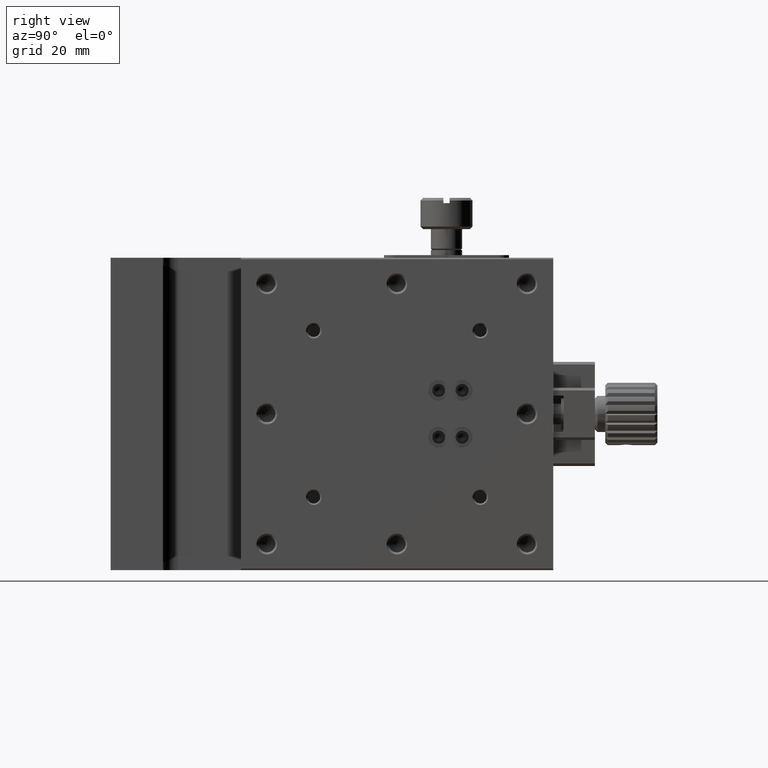
[diagram: clean part render]
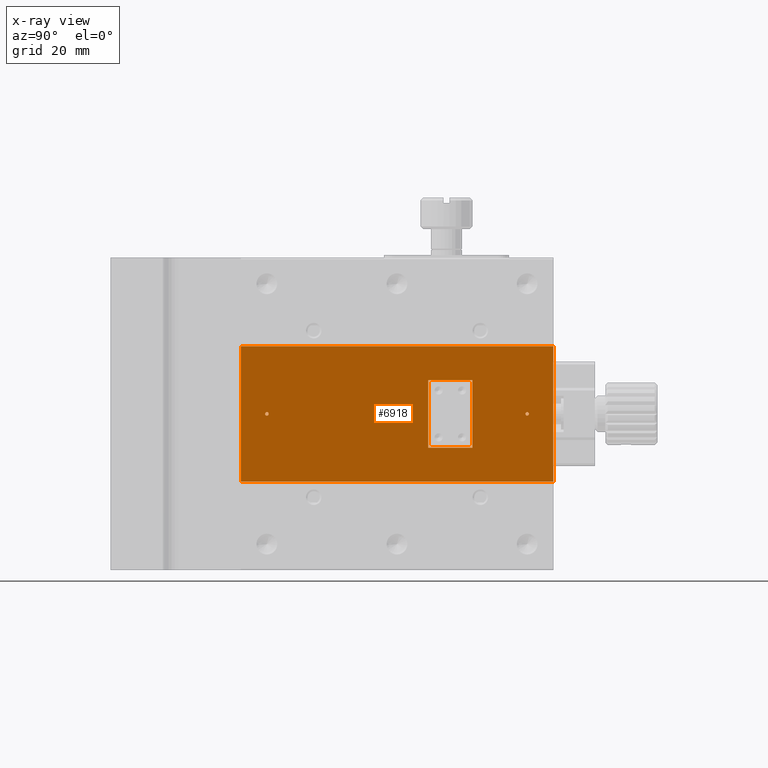
[diagram: x-ray — body ghosted, one internal face saturated and labeled with its STEP entity id]
A machine part, right view, then the same camera in x-ray: the body is ghosted and one INTERNAL B-rep face — a face not visible from any outside direction — is saturated and labeled: STEP entity #6918.
In plain terms, the highlighted planar face has unit normal (1, 0, -0).
Its self-contained STEP definition (entity closure, byte-faithful):
#356 = DIRECTION ( 'NONE',  ( 0.000000000000000000, -1.000000000000000000, 0.000000000000000000 ) ) ;
#392 = EDGE_LOOP ( 'NONE', ( #3092 ) ) ;
#448 = LINE ( 'NONE', #1371, #7311 ) ;
#479 = EDGE_LOOP ( 'NONE', ( #5239 ) ) ;
#523 = DIRECTION ( 'NONE',  ( 0.000000000000000000, -1.000000000000000000, 0.000000000000000000 ) ) ;
#658 = CARTESIAN_POINT ( 'NONE',  ( 30.99999999997134736, 80.00000000000000000, -29.99999999999999289 ) ) ;
#950 = CARTESIAN_POINT ( 'NONE',  ( 31.00000000000000000, 69.50000000000000000, -23.49999999999999289 ) ) ;
#991 = EDGE_CURVE ( 'NONE', #8866, #9744, #6757, .T. ) ;
#1122 = PLANE ( 'NONE',  #7941 ) ;
#1259 = VECTOR ( 'NONE', #2640, 1000.000000000000000 ) ;
#1313 = ORIENTED_EDGE ( 'NONE', *, *, #2258, .F. ) ;
#1371 = CARTESIAN_POINT ( 'NONE',  ( 31.00000000000000000, 61.00000000000000711, -16.99999999999999289 ) ) ;
#1388 = DIRECTION ( 'NONE',  ( -0.000000000000000000, 1.000000000000000000, -0.000000000000000000 ) ) ;
#1482 = EDGE_CURVE ( 'NONE', #3645, #4784, #448, .T. ) ;
#1760 = EDGE_CURVE ( 'NONE', #4632, #4632, #6449, .T. ) ;
#1763 = AXIS2_PLACEMENT_3D ( 'NONE', #2610, #6177, #4502 ) ;
#1929 = DIRECTION ( 'NONE',  ( 0.000000000000000000, 0.000000000000000000, -1.000000000000000000 ) ) ;
#2221 = DIRECTION ( 'NONE',  ( -0.000000000000000000, 1.000000000000000000, -0.000000000000000000 ) ) ;
#2258 = EDGE_CURVE ( 'NONE', #8866, #7304, #7791, .T. ) ;
#2471 = VECTOR ( 'NONE', #356, 1000.000000000000000 ) ;
#2610 = CARTESIAN_POINT ( 'NONE',  ( 30.99999999997134736, 30.00000000000000711, -29.99999999999999289 ) ) ;
#2640 = DIRECTION ( 'NONE',  ( 0.000000000000000000, 0.000000000000000000, -1.000000000000000000 ) ) ;
#2757 = FACE_BOUND ( 'NONE', #392, .T. ) ;
#2774 = LINE ( 'NONE', #6189, #8143 ) ;
#2867 = FACE_BOUND ( 'NONE', #479, .T. ) ;
#2981 = EDGE_CURVE ( 'NONE', #8095, #8095, #6306, .T. ) ;
#3051 = DIRECTION ( 'NONE',  ( 1.334402673828309888E-16, 0.000000000000000000, 1.000000000000000000 ) ) ;
#3092 = ORIENTED_EDGE ( 'NONE', *, *, #2981, .F. ) ;
#3156 = VERTEX_POINT ( 'NONE', #5378 ) ;
#3275 = DIRECTION ( 'NONE',  ( -1.000000000000000000, -0.000000000000000000, -0.000000000000000000 ) ) ;
#3314 = ORIENTED_EDGE ( 'NONE', *, *, #1482, .F. ) ;
#3375 = DIRECTION ( 'NONE',  ( -1.334402673828309888E-16, -0.000000000000000000, -1.000000000000000000 ) ) ;
#3573 = CARTESIAN_POINT ( 'NONE',  ( 31.00000000000000000, 25.00000000000000711, -16.99999999999999289 ) ) ;
#3645 = VERTEX_POINT ( 'NONE', #8265 ) ;
#3796 = LINE ( 'NONE', #9754, #7100 ) ;
#3799 = EDGE_LOOP ( 'NONE', ( #3314, #6053, #4110, #9258 ) ) ;
#3935 = VECTOR ( 'NONE', #3375, 1000.000000000000000 ) ;
#3992 = DIRECTION ( 'NONE',  ( 0.000000000000000000, 0.000000000000000000, 1.000000000000000000 ) ) ;
#4084 = EDGE_CURVE ( 'NONE', #7125, #6648, #8148, .T. ) ;
#4110 = ORIENTED_EDGE ( 'NONE', *, *, #4084, .F. ) ;
#4502 = DIRECTION ( 'NONE',  ( 0.000000000000000000, 0.000000000000000000, 1.000000000000000000 ) ) ;
#4632 = VERTEX_POINT ( 'NONE', #8751 ) ;
#4784 = VERTEX_POINT ( 'NONE', #9546 ) ;
#4791 = CARTESIAN_POINT ( 'NONE',  ( 30.99999999997134736, 80.00000000000000000, -29.66427948234694867 ) ) ;
#4808 = CARTESIAN_POINT ( 'NONE',  ( 30.99999999999999289, 25.00000000000000711, -43.00000000000000000 ) ) ;
#4975 = ORIENTED_EDGE ( 'NONE', *, *, #8659, .F. ) ;
#4977 = EDGE_CURVE ( 'NONE', #7304, #3156, #6003, .T. ) ;
#5239 = ORIENTED_EDGE ( 'NONE', *, *, #1760, .F. ) ;
#5258 = FACE_OUTER_BOUND ( 'NONE', #9528, .T. ) ;
#5378 = CARTESIAN_POINT ( 'NONE',  ( 30.99999999999999289, 25.00000000000000711, -43.00000000000000000 ) ) ;
#5952 = CARTESIAN_POINT ( 'NONE',  ( 31.00000000000000000, 25.00000000000000711, 7.347880794884119933E-15 ) ) ;
#6003 = LINE ( 'NONE', #5952, #8275 ) ;
#6053 = ORIENTED_EDGE ( 'NONE', *, *, #9715, .F. ) ;
#6173 = CARTESIAN_POINT ( 'NONE',  ( 31.00000000000000000, 25.00000000000000711, -16.99999999999999289 ) ) ;
#6177 = DIRECTION ( 'NONE',  ( -1.000000000000000000, -0.000000000000000000, -0.000000000000000000 ) ) ;
#6189 = CARTESIAN_POINT ( 'NONE',  ( 30.99999999999999645, 25.00000000000000711, -23.49999999999999289 ) ) ;
#6228 = CARTESIAN_POINT ( 'NONE',  ( 30.99999999999999289, 85.00000000000000000, -43.00000000000000000 ) ) ;
#6306 = CIRCLE ( 'NONE', #9256, 0.3357205176530431157 ) ;
#6449 = CIRCLE ( 'NONE', #1763, 0.3357205176530431157 ) ;
#6567 = VECTOR ( 'NONE', #1388, 1000.000000000000000 ) ;
#6608 = CARTESIAN_POINT ( 'NONE',  ( 30.99999999999999645, 69.50000000000000000, -36.49999999999999289 ) ) ;
#6648 = VERTEX_POINT ( 'NONE', #6608 ) ;
#6757 = LINE ( 'NONE', #10075, #1259 ) ;
#6860 = CARTESIAN_POINT ( 'NONE',  ( 31.00000000000000000, 25.00000000000000711, -16.99999999999999289 ) ) ;
#6918 = ADVANCED_FACE ( 'NONE', ( #5258, #2867, #2757, #8561 ), #1122, .F. ) ;
#7037 = DIRECTION ( 'NONE',  ( 1.000000000000000000, 0.000000000000000000, -1.334402673828309888E-16 ) ) ;
#7038 = ORIENTED_EDGE ( 'NONE', *, *, #4977, .F. ) ;
#7100 = VECTOR ( 'NONE', #523, 1000.000000000000000 ) ;
#7125 = VERTEX_POINT ( 'NONE', #950 ) ;
#7304 = VERTEX_POINT ( 'NONE', #6860 ) ;
#7311 = VECTOR ( 'NONE', #3051, 1000.000000000000000 ) ;
#7615 = CARTESIAN_POINT ( 'NONE',  ( 31.00000000000000000, 85.00000000000000000, -16.99999999999999289 ) ) ;
#7791 = LINE ( 'NONE', #3573, #2471 ) ;
#7941 = AXIS2_PLACEMENT_3D ( 'NONE', #6173, #7037, #10348 ) ;
#8095 = VERTEX_POINT ( 'NONE', #4791 ) ;
#8143 = VECTOR ( 'NONE', #2221, 1000.000000000000000 ) ;
#8148 = LINE ( 'NONE', #8251, #3935 ) ;
#8171 = EDGE_CURVE ( 'NONE', #4784, #7125, #2774, .T. ) ;
#8251 = CARTESIAN_POINT ( 'NONE',  ( 31.00000000000000000, 69.50000000000000000, -16.99999999999999289 ) ) ;
#8265 = CARTESIAN_POINT ( 'NONE',  ( 30.99999999999999645, 61.00000000000000711, -36.49999999999999289 ) ) ;
#8275 = VECTOR ( 'NONE', #1929, 1000.000000000000000 ) ;
#8561 = FACE_BOUND ( 'NONE', #3799, .T. ) ;
#8659 = EDGE_CURVE ( 'NONE', #3156, #9744, #9799, .T. ) ;
#8751 = CARTESIAN_POINT ( 'NONE',  ( 30.99999999997134736, 30.00000000000000711, -29.66427948234694867 ) ) ;
#8866 = VERTEX_POINT ( 'NONE', #7615 ) ;
#9256 = AXIS2_PLACEMENT_3D ( 'NONE', #658, #3275, #3992 ) ;
#9258 = ORIENTED_EDGE ( 'NONE', *, *, #8171, .F. ) ;
#9451 = ORIENTED_EDGE ( 'NONE', *, *, #991, .T. ) ;
#9528 = EDGE_LOOP ( 'NONE', ( #4975, #7038, #1313, #9451 ) ) ;
#9546 = CARTESIAN_POINT ( 'NONE',  ( 31.00000000000000000, 61.00000000000000711, -23.49999999999999289 ) ) ;
#9715 = EDGE_CURVE ( 'NONE', #6648, #3645, #3796, .T. ) ;
#9744 = VERTEX_POINT ( 'NONE', #6228 ) ;
#9754 = CARTESIAN_POINT ( 'NONE',  ( 30.99999999999999645, 25.00000000000000711, -36.49999999999999289 ) ) ;
#9799 = LINE ( 'NONE', #4808, #6567 ) ;
#10075 = CARTESIAN_POINT ( 'NONE',  ( 31.00000000000000000, 85.00000000000000000, 7.347880794884119933E-15 ) ) ;
#10348 = DIRECTION ( 'NONE',  ( 1.334402673828309888E-16, 0.000000000000000000, 1.000000000000000000 ) ) ;